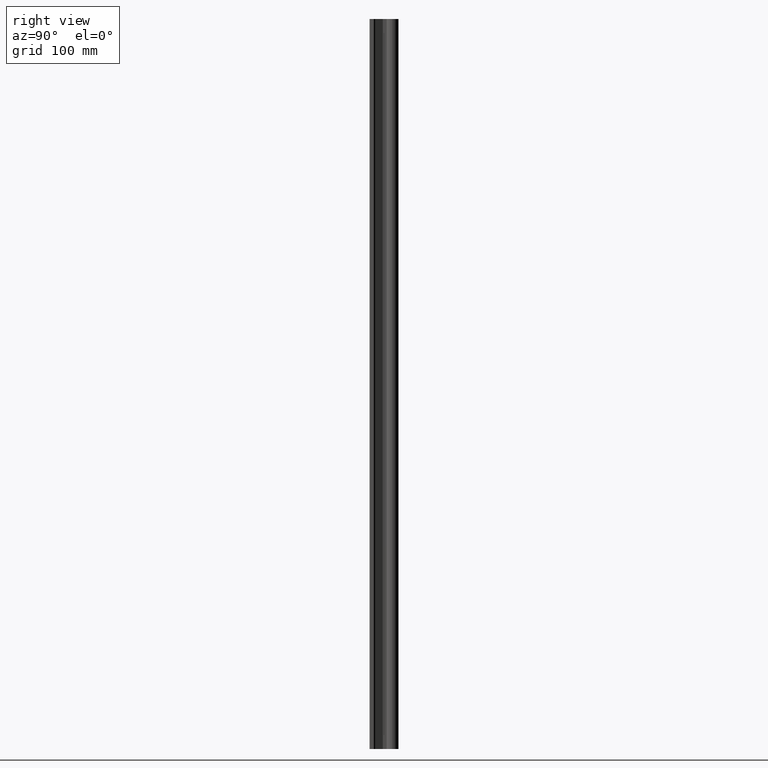
[diagram: clean part render]
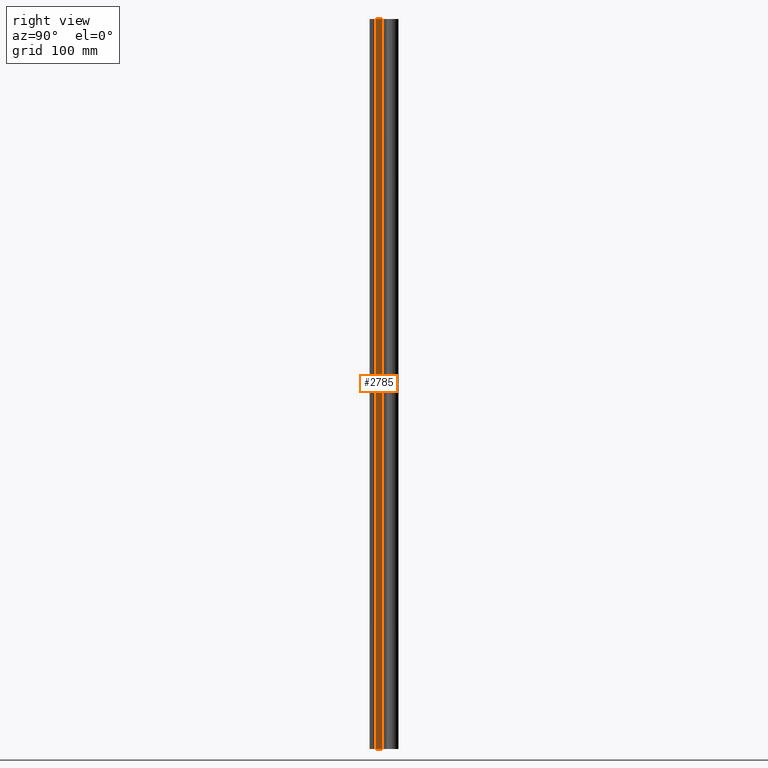
[diagram: same view with one face highlighted and labeled with its STEP entity id]
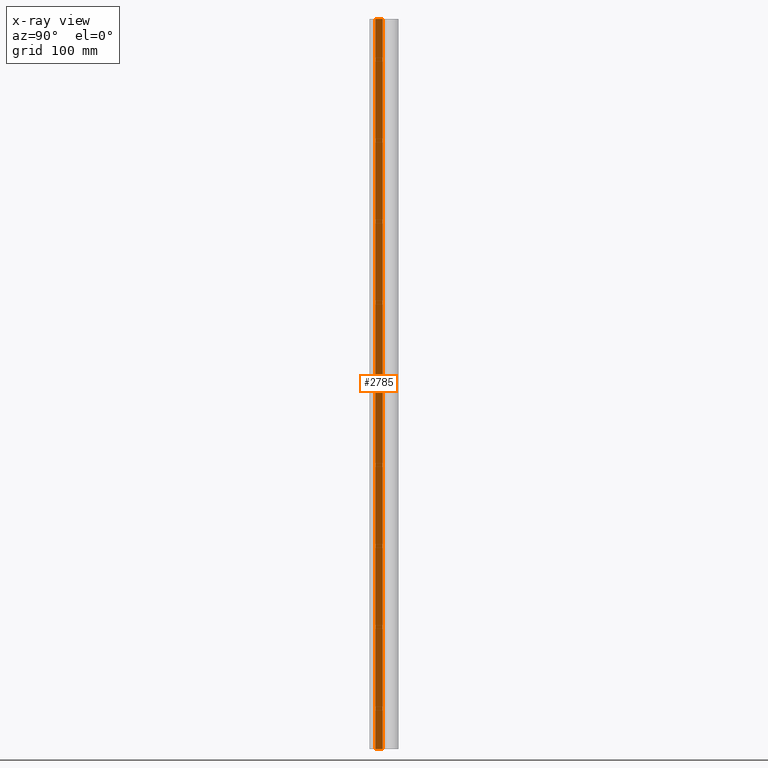
[diagram: x-ray of the same camera — body ghosted, the highlighted face saturated]
A machine part, right view. The second image highlights one B-rep face of the part: STEP entity #2785.
The next image is the same camera in x-ray: the body ghosted, the highlighted face saturated — about 0% of this face is hidden behind the body in this view.
In plain terms, the highlighted planar face has unit normal (0.9063, 0.4226, 0).
Its self-contained STEP definition (entity closure, byte-faithful):
#318 = VECTOR ( 'NONE', #10750, 39.37007874015748143 ) ;
#575 = ORIENTED_EDGE ( 'NONE', *, *, #6766, .F. ) ;
#847 = ORIENTED_EDGE ( 'NONE', *, *, #11871, .T. ) ;
#1042 = LINE ( 'NONE', #5493, #10147 ) ;
#1184 = CARTESIAN_POINT ( 'NONE',  ( 0.3302890422999967268, 0.2860863586999988772, -37.83356500330708627 ) ) ;
#1329 = EDGE_CURVE ( 'NONE', #3256, #11946, #3789, .T. ) ;
#1508 = ORIENTED_EDGE ( 'NONE', *, *, #1329, .F. ) ;
#2785 = ADVANCED_FACE ( 'NONE', ( #5046 ), #4982, .T. ) ;
#2888 = EDGE_LOOP ( 'NONE', ( #575, #847, #2931, #1508 ) ) ;
#2931 = ORIENTED_EDGE ( 'NONE', *, *, #9498, .F. ) ;
#3256 = VERTEX_POINT ( 'NONE', #11120 ) ;
#3789 = LINE ( 'NONE', #1184, #11900 ) ;
#3836 = CARTESIAN_POINT ( 'NONE',  ( 0.1621057632999977349, 0.6467565642999993925, -36.00000000000000000 ) ) ;
#4745 = CARTESIAN_POINT ( 'NONE',  ( 0.1621057632999977627, 0.6467565642999993925, -37.83356500330708627 ) ) ;
#4982 = PLANE ( 'NONE',  #11380 ) ;
#5046 = FACE_OUTER_BOUND ( 'NONE', #2888, .T. ) ;
#5056 = CARTESIAN_POINT ( 'NONE',  ( 0.1621057632999977349, 0.6467565642999993925, 0.000000000000000000 ) ) ;
#5493 = CARTESIAN_POINT ( 'NONE',  ( 0.3302890422999968378, 0.2860863586999988217, -36.00000000000000000 ) ) ;
#5644 = VERTEX_POINT ( 'NONE', #5056 ) ;
#6766 = EDGE_CURVE ( 'NONE', #11894, #3256, #1042, .T. ) ;
#6947 = LINE ( 'NONE', #9775, #318 ) ;
#7002 = DIRECTION ( 'NONE',  ( -0.4226182618653278045, 0.9063077869785348684, 0.000000000000000000 ) ) ;
#8493 = DIRECTION ( 'NONE',  ( 0.000000000000000000, 0.000000000000000000, 1.000000000000000000 ) ) ;
#8494 = DIRECTION ( 'NONE',  ( 0.4226182618653278045, -0.9063077869785348684, 0.000000000000000000 ) ) ;
#8795 = DIRECTION ( 'NONE',  ( 0.9063077869785348684, 0.4226182618653278045, -0.000000000000000000 ) ) ;
#9498 = EDGE_CURVE ( 'NONE', #11946, #5644, #6947, .T. ) ;
#9775 = CARTESIAN_POINT ( 'NONE',  ( 0.3302890422999968378, 0.2860863586999988217, 0.000000000000000000 ) ) ;
#10147 = VECTOR ( 'NONE', #8494, 39.37007874015748143 ) ;
#10388 = LINE ( 'NONE', #4745, #11807 ) ;
#10410 = DIRECTION ( 'NONE',  ( 0.000000000000000000, 0.000000000000000000, 1.000000000000000000 ) ) ;
#10611 = CARTESIAN_POINT ( 'NONE',  ( 0.3302890422999968378, 0.2860863586999988217, -37.83356500330708627 ) ) ;
#10693 = CARTESIAN_POINT ( 'NONE',  ( 0.3302890422999968378, 0.2860863586999988772, 0.000000000000000000 ) ) ;
#10750 = DIRECTION ( 'NONE',  ( -0.4226182618653278045, 0.9063077869785348684, 0.000000000000000000 ) ) ;
#11120 = CARTESIAN_POINT ( 'NONE',  ( 0.3302890422999967268, 0.2860863586999988772, -36.00000000000000000 ) ) ;
#11380 = AXIS2_PLACEMENT_3D ( 'NONE', #10611, #8795, #7002 ) ;
#11807 = VECTOR ( 'NONE', #8493, 39.37007874015748143 ) ;
#11871 = EDGE_CURVE ( 'NONE', #11894, #5644, #10388, .T. ) ;
#11894 = VERTEX_POINT ( 'NONE', #3836 ) ;
#11900 = VECTOR ( 'NONE', #10410, 39.37007874015748143 ) ;
#11946 = VERTEX_POINT ( 'NONE', #10693 ) ;